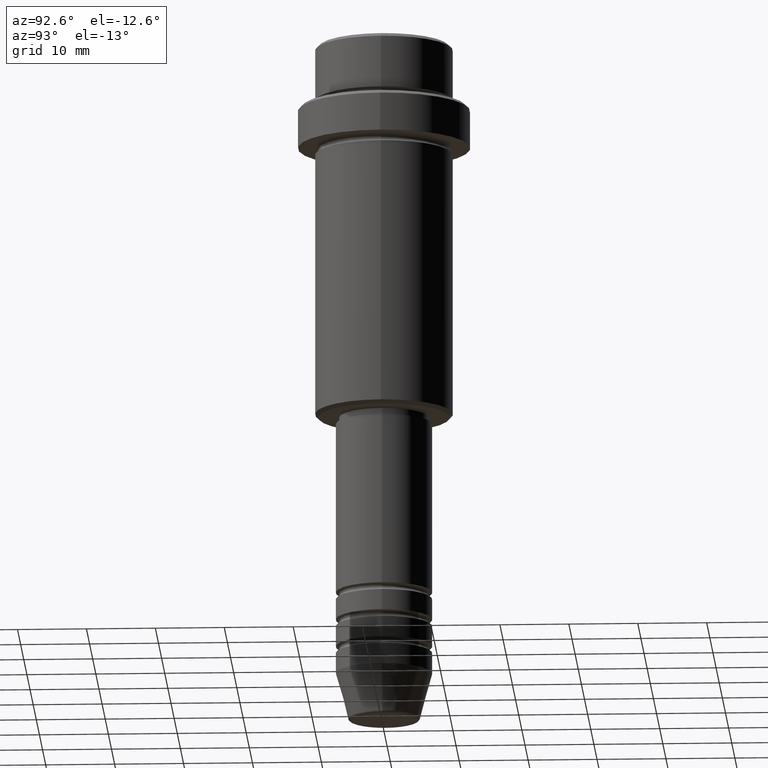
[diagram: clean part render]
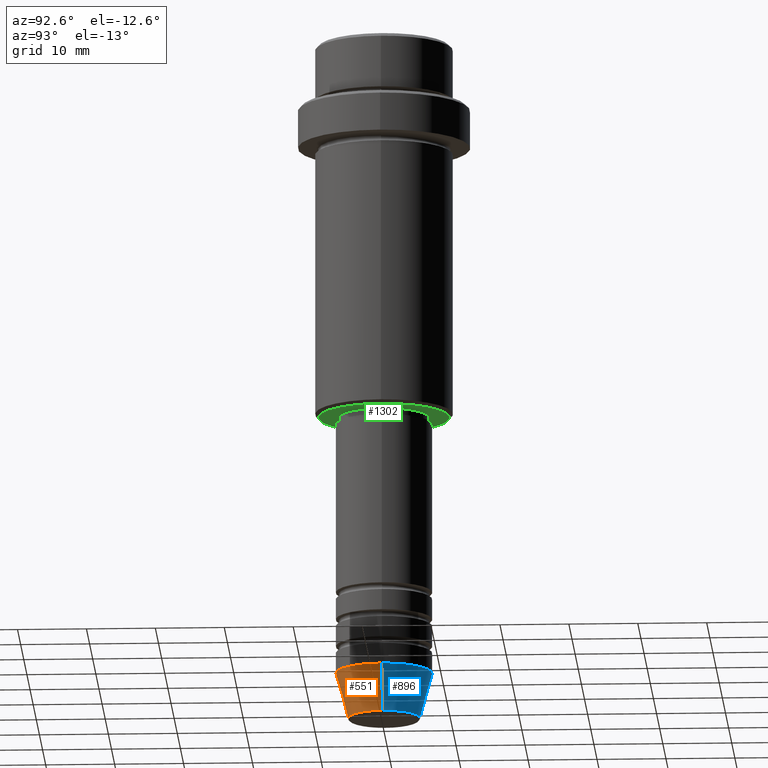
[diagram: same view with three faces highlighted in distinct colors, each labeled with its STEP entity id]
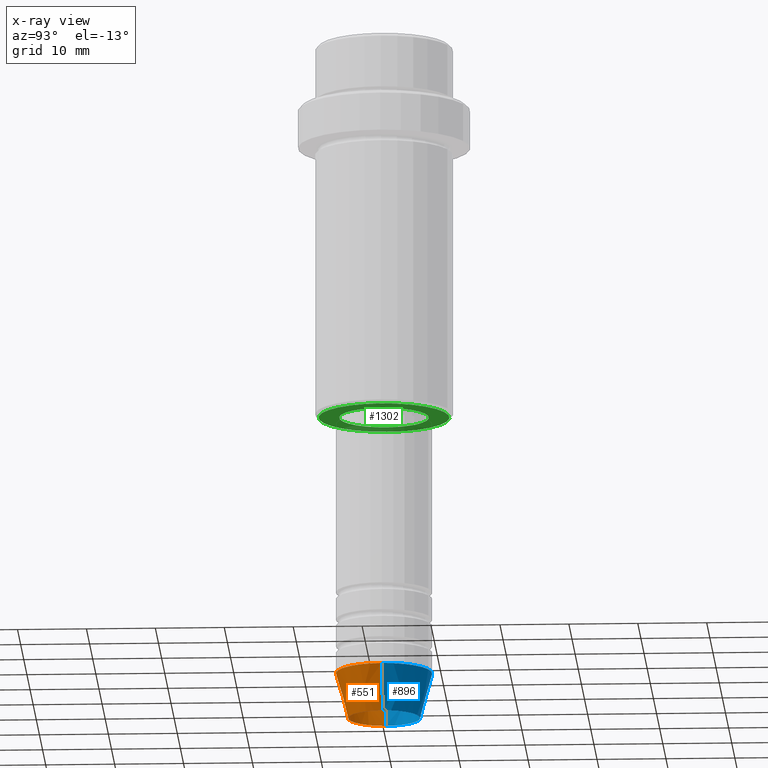
[diagram: x-ray of the same camera — body ghosted, the three highlighted faces saturated]
A machine part, auxiliary view with three faces highlighted in distinct colors.
The next image is the same camera in x-ray (body ghosted, the three faces saturated) — at least one of them is partly hidden behind the body in this view.
Their STEP definitions:

[orange] entity #551 — the highlighted conical surface has half-angle 15 deg.
#61 = DIRECTION ( 'NONE',  ( 1.000000000000000000, 0.000000000000000000, 0.000000000000000000 ) ) ;
#74 = CIRCLE ( 'NONE', #1034, 5.223655072137187716 ) ;
#85 = DIRECTION ( 'NONE',  ( -0.000000000000000000, -0.000000000000000000, 1.000000000000000000 ) ) ;
#102 = VECTOR ( 'NONE', #247, 1000.000000000000000 ) ;
#109 = EDGE_CURVE ( 'NONE', #130, #542, #74, .T. ) ;
#130 = VERTEX_POINT ( 'NONE', #315 ) ;
#149 = DIRECTION ( 'NONE',  ( 1.000000000000000000, 0.000000000000000000, 0.000000000000000000 ) ) ;
#164 = CARTESIAN_POINT ( 'NONE',  ( -7.000000000000000000, 8.572527594031473190E-16, -93.00000000000000000 ) ) ;
#208 = EDGE_CURVE ( 'NONE', #130, #1320, #570, .T. ) ;
#216 = DIRECTION ( 'NONE',  ( 1.000000000000000000, 0.000000000000000000, 0.000000000000000000 ) ) ;
#247 = DIRECTION ( 'NONE',  ( 0.2588190451025214056, 0.000000000000000000, 0.9659258262890680902 ) ) ;
#251 = DIRECTION ( 'NONE',  ( -0.000000000000000000, -0.000000000000000000, 1.000000000000000000 ) ) ;
#269 = FACE_OUTER_BOUND ( 'NONE', #556, .T. ) ;
#315 = CARTESIAN_POINT ( 'NONE',  ( -5.223655072137187716, 7.484830028987059188E-16, -99.62940952255127058 ) ) ;
#343 = ORIENTED_EDGE ( 'NONE', *, *, #109, .T. ) ;
#368 = CARTESIAN_POINT ( 'NONE',  ( 0.000000000000000000, 0.000000000000000000, -93.00000000000000000 ) ) ;
#381 = EDGE_CURVE ( 'NONE', #542, #915, #628, .T. ) ;
#432 = ORIENTED_EDGE ( 'NONE', *, *, #951, .F. ) ;
#515 = ORIENTED_EDGE ( 'NONE', *, *, #208, .F. ) ;
#542 = VERTEX_POINT ( 'NONE', #681 ) ;
#551 = ADVANCED_FACE ( 'NONE', ( #269 ), #715, .T. ) ;
#556 = EDGE_LOOP ( 'NONE', ( #515, #343, #1300, #432 ) ) ;
#570 = LINE ( 'NONE', #164, #964 ) ;
#628 = LINE ( 'NONE', #1063, #102 ) ;
#681 = CARTESIAN_POINT ( 'NONE',  ( 5.223655072137187716, 0.000000000000000000, -99.62940952255127058 ) ) ;
#715 = CONICAL_SURFACE ( 'NONE', #1101, 7.000000000000000000, 0.2617993877991501295 ) ;
#777 = DIRECTION ( 'NONE',  ( -0.2588190451025214056, 3.169619151431772953E-17, 0.9659258262890680902 ) ) ;
#819 = CARTESIAN_POINT ( 'NONE',  ( -7.000000000000000000, 8.572527594031473190E-16, -93.00000000000000000 ) ) ;
#854 = CARTESIAN_POINT ( 'NONE',  ( 0.000000000000000000, 0.000000000000000000, -99.62940952255127058 ) ) ;
#915 = VERTEX_POINT ( 'NONE', #1162 ) ;
#951 = EDGE_CURVE ( 'NONE', #1320, #915, #1015, .T. ) ;
#964 = VECTOR ( 'NONE', #777, 1000.000000000000000 ) ;
#1015 = CIRCLE ( 'NONE', #1340, 7.000000000000000000 ) ;
#1034 = AXIS2_PLACEMENT_3D ( 'NONE', #854, #1299, #216 ) ;
#1063 = CARTESIAN_POINT ( 'NONE',  ( 7.000000000000000000, 0.000000000000000000, -93.00000000000000000 ) ) ;
#1064 = CARTESIAN_POINT ( 'NONE',  ( 0.000000000000000000, 0.000000000000000000, -93.00000000000000000 ) ) ;
#1101 = AXIS2_PLACEMENT_3D ( 'NONE', #368, #251, #149 ) ;
#1162 = CARTESIAN_POINT ( 'NONE',  ( 7.000000000000000000, 0.000000000000000000, -93.00000000000000000 ) ) ;
#1299 = DIRECTION ( 'NONE',  ( -0.000000000000000000, -0.000000000000000000, 1.000000000000000000 ) ) ;
#1300 = ORIENTED_EDGE ( 'NONE', *, *, #381, .T. ) ;
#1320 = VERTEX_POINT ( 'NONE', #819 ) ;
#1340 = AXIS2_PLACEMENT_3D ( 'NONE', #1064, #85, #61 ) ;

[blue] entity #896 — the highlighted conical surface has half-angle 15 deg.
#33 = EDGE_CURVE ( 'NONE', #542, #130, #321, .T. ) ;
#102 = VECTOR ( 'NONE', #247, 1000.000000000000000 ) ;
#130 = VERTEX_POINT ( 'NONE', #315 ) ;
#164 = CARTESIAN_POINT ( 'NONE',  ( -7.000000000000000000, 8.572527594031473190E-16, -93.00000000000000000 ) ) ;
#208 = EDGE_CURVE ( 'NONE', #130, #1320, #570, .T. ) ;
#218 = CONICAL_SURFACE ( 'NONE', #418, 7.000000000000000000, 0.2617993877991501295 ) ;
#222 = ORIENTED_EDGE ( 'NONE', *, *, #33, .T. ) ;
#247 = DIRECTION ( 'NONE',  ( 0.2588190451025214056, 0.000000000000000000, 0.9659258262890680902 ) ) ;
#290 = CARTESIAN_POINT ( 'NONE',  ( 0.000000000000000000, 0.000000000000000000, -93.00000000000000000 ) ) ;
#315 = CARTESIAN_POINT ( 'NONE',  ( -5.223655072137187716, 7.484830028987059188E-16, -99.62940952255127058 ) ) ;
#321 = CIRCLE ( 'NONE', #866, 5.223655072137187716 ) ;
#361 = EDGE_LOOP ( 'NONE', ( #222, #1188, #617, #1091 ) ) ;
#373 = CARTESIAN_POINT ( 'NONE',  ( 0.000000000000000000, 0.000000000000000000, -99.62940952255127058 ) ) ;
#381 = EDGE_CURVE ( 'NONE', #542, #915, #628, .T. ) ;
#388 = FACE_OUTER_BOUND ( 'NONE', #361, .T. ) ;
#418 = AXIS2_PLACEMENT_3D ( 'NONE', #1393, #934, #1268 ) ;
#542 = VERTEX_POINT ( 'NONE', #681 ) ;
#570 = LINE ( 'NONE', #164, #964 ) ;
#617 = ORIENTED_EDGE ( 'NONE', *, *, #1069, .F. ) ;
#628 = LINE ( 'NONE', #1063, #102 ) ;
#675 = CIRCLE ( 'NONE', #787, 7.000000000000000000 ) ;
#681 = CARTESIAN_POINT ( 'NONE',  ( 5.223655072137187716, 0.000000000000000000, -99.62940952255127058 ) ) ;
#703 = DIRECTION ( 'NONE',  ( -0.000000000000000000, -0.000000000000000000, 1.000000000000000000 ) ) ;
#777 = DIRECTION ( 'NONE',  ( -0.2588190451025214056, 3.169619151431772953E-17, 0.9659258262890680902 ) ) ;
#787 = AXIS2_PLACEMENT_3D ( 'NONE', #290, #1051, #1360 ) ;
#819 = CARTESIAN_POINT ( 'NONE',  ( -7.000000000000000000, 8.572527594031473190E-16, -93.00000000000000000 ) ) ;
#866 = AXIS2_PLACEMENT_3D ( 'NONE', #373, #703, #1136 ) ;
#896 = ADVANCED_FACE ( 'NONE', ( #388 ), #218, .T. ) ;
#915 = VERTEX_POINT ( 'NONE', #1162 ) ;
#934 = DIRECTION ( 'NONE',  ( -0.000000000000000000, -0.000000000000000000, 1.000000000000000000 ) ) ;
#964 = VECTOR ( 'NONE', #777, 1000.000000000000000 ) ;
#1051 = DIRECTION ( 'NONE',  ( -0.000000000000000000, -0.000000000000000000, 1.000000000000000000 ) ) ;
#1063 = CARTESIAN_POINT ( 'NONE',  ( 7.000000000000000000, 0.000000000000000000, -93.00000000000000000 ) ) ;
#1069 = EDGE_CURVE ( 'NONE', #915, #1320, #675, .T. ) ;
#1091 = ORIENTED_EDGE ( 'NONE', *, *, #381, .F. ) ;
#1136 = DIRECTION ( 'NONE',  ( 1.000000000000000000, 0.000000000000000000, 0.000000000000000000 ) ) ;
#1162 = CARTESIAN_POINT ( 'NONE',  ( 7.000000000000000000, 0.000000000000000000, -93.00000000000000000 ) ) ;
#1188 = ORIENTED_EDGE ( 'NONE', *, *, #208, .T. ) ;
#1268 = DIRECTION ( 'NONE',  ( 1.000000000000000000, 0.000000000000000000, 0.000000000000000000 ) ) ;
#1320 = VERTEX_POINT ( 'NONE', #819 ) ;
#1360 = DIRECTION ( 'NONE',  ( 1.000000000000000000, 0.000000000000000000, 0.000000000000000000 ) ) ;
#1393 = CARTESIAN_POINT ( 'NONE',  ( 0.000000000000000000, 0.000000000000000000, -93.00000000000000000 ) ) ;

[green] entity #1302 — the highlighted planar face has unit normal (0, 0, -1).
#7 = CIRCLE ( 'NONE', #260, 9.500000000000023093 ) ;
#29 = VERTEX_POINT ( 'NONE', #912 ) ;
#35 = AXIS2_PLACEMENT_3D ( 'NONE', #872, #435, #969 ) ;
#40 = CARTESIAN_POINT ( 'NONE',  ( 0.000000000000000000, 0.000000000000000000, -54.99999999999999289 ) ) ;
#133 = DIRECTION ( 'NONE',  ( 0.000000000000000000, 0.000000000000000000, -1.000000000000000000 ) ) ;
#158 = EDGE_CURVE ( 'NONE', #584, #370, #7, .T. ) ;
#159 = DIRECTION ( 'NONE',  ( 0.000000000000000000, 0.000000000000000000, -1.000000000000000000 ) ) ;
#260 = AXIS2_PLACEMENT_3D ( 'NONE', #40, #133, #1243 ) ;
#271 = FACE_OUTER_BOUND ( 'NONE', #921, .T. ) ;
#272 = ORIENTED_EDGE ( 'NONE', *, *, #386, .T. ) ;
#276 = CARTESIAN_POINT ( 'NONE',  ( 0.000000000000000000, 10.00000000000000000, -54.99999999999999289 ) ) ;
#298 = DIRECTION ( 'NONE',  ( -0.000000000000000000, -0.000000000000000000, 1.000000000000000000 ) ) ;
#336 = EDGE_CURVE ( 'NONE', #508, #29, #643, .T. ) ;
#351 = ORIENTED_EDGE ( 'NONE', *, *, #1407, .T. ) ;
#370 = VERTEX_POINT ( 'NONE', #1211 ) ;
#386 = EDGE_CURVE ( 'NONE', #370, #584, #1250, .T. ) ;
#390 = PLANE ( 'NONE',  #1230 ) ;
#416 = CIRCLE ( 'NONE', #1383, 6.499999999999994671 ) ;
#435 = DIRECTION ( 'NONE',  ( -0.000000000000000000, -0.000000000000000000, 1.000000000000000000 ) ) ;
#479 = FACE_BOUND ( 'NONE', #820, .T. ) ;
#508 = VERTEX_POINT ( 'NONE', #972 ) ;
#559 = CARTESIAN_POINT ( 'NONE',  ( -9.500000000000023093, 1.194030629168670653E-15, -54.99999999999999289 ) ) ;
#584 = VERTEX_POINT ( 'NONE', #559 ) ;
#634 = DIRECTION ( 'NONE',  ( 0.000000000000000000, 0.000000000000000000, -1.000000000000000000 ) ) ;
#643 = CIRCLE ( 'NONE', #35, 6.499999999999994671 ) ;
#736 = CARTESIAN_POINT ( 'NONE',  ( 0.000000000000000000, 0.000000000000000000, -54.99999999999999289 ) ) ;
#820 = EDGE_LOOP ( 'NONE', ( #1305, #351 ) ) ;
#831 = ORIENTED_EDGE ( 'NONE', *, *, #158, .T. ) ;
#872 = CARTESIAN_POINT ( 'NONE',  ( 0.000000000000000000, 0.000000000000000000, -54.99999999999999289 ) ) ;
#912 = CARTESIAN_POINT ( 'NONE',  ( -6.499999999999994671, 7.960204194457788574E-16, -54.99999999999999289 ) ) ;
#921 = EDGE_LOOP ( 'NONE', ( #272, #831 ) ) ;
#969 = DIRECTION ( 'NONE',  ( 1.000000000000000000, 0.000000000000000000, 0.000000000000000000 ) ) ;
#972 = CARTESIAN_POINT ( 'NONE',  ( 6.499999999999994671, 0.000000000000000000, -54.99999999999999289 ) ) ;
#1039 = DIRECTION ( 'NONE',  ( -1.000000000000000000, 0.000000000000000000, -0.000000000000000000 ) ) ;
#1066 = DIRECTION ( 'NONE',  ( -1.000000000000000000, 0.000000000000000000, 0.000000000000000000 ) ) ;
#1093 = CARTESIAN_POINT ( 'NONE',  ( 0.000000000000000000, 0.000000000000000000, -54.99999999999999289 ) ) ;
#1149 = AXIS2_PLACEMENT_3D ( 'NONE', #1093, #634, #1066 ) ;
#1175 = DIRECTION ( 'NONE',  ( 1.000000000000000000, 0.000000000000000000, 0.000000000000000000 ) ) ;
#1211 = CARTESIAN_POINT ( 'NONE',  ( 9.500000000000023093, 0.000000000000000000, -54.99999999999999289 ) ) ;
#1230 = AXIS2_PLACEMENT_3D ( 'NONE', #276, #159, #1039 ) ;
#1243 = DIRECTION ( 'NONE',  ( -1.000000000000000000, 0.000000000000000000, 0.000000000000000000 ) ) ;
#1250 = CIRCLE ( 'NONE', #1149, 9.500000000000023093 ) ;
#1302 = ADVANCED_FACE ( 'NONE', ( #271, #479 ), #390, .T. ) ;
#1305 = ORIENTED_EDGE ( 'NONE', *, *, #336, .T. ) ;
#1383 = AXIS2_PLACEMENT_3D ( 'NONE', #736, #298, #1175 ) ;
#1407 = EDGE_CURVE ( 'NONE', #29, #508, #416, .T. ) ;